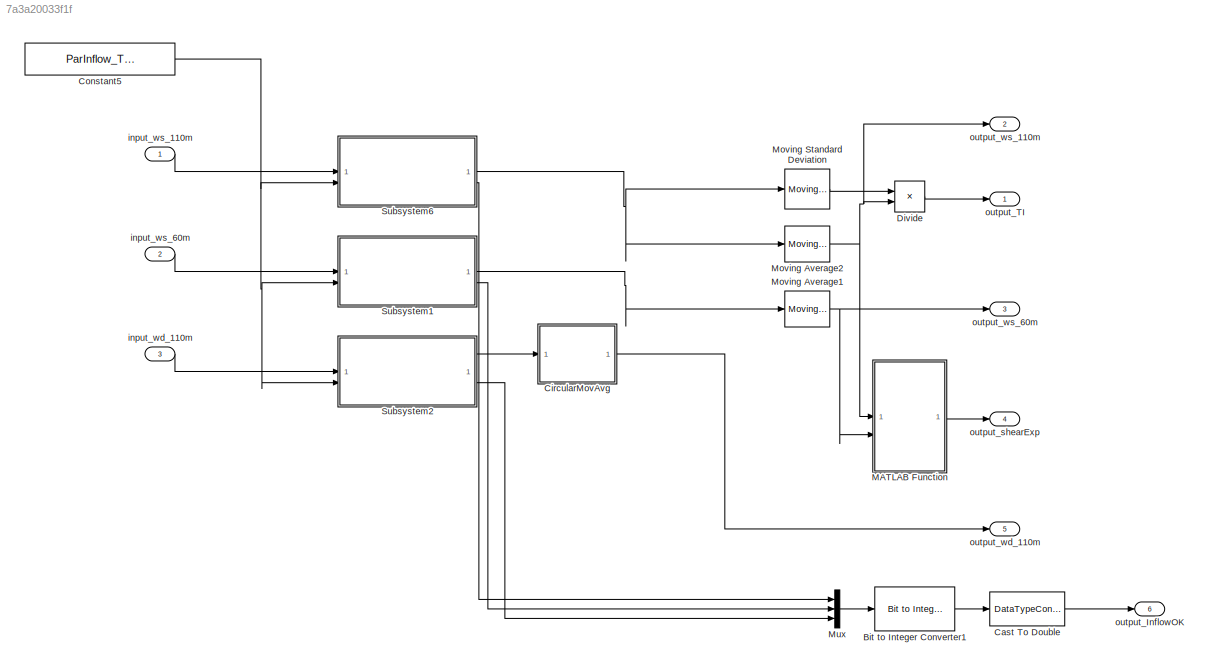
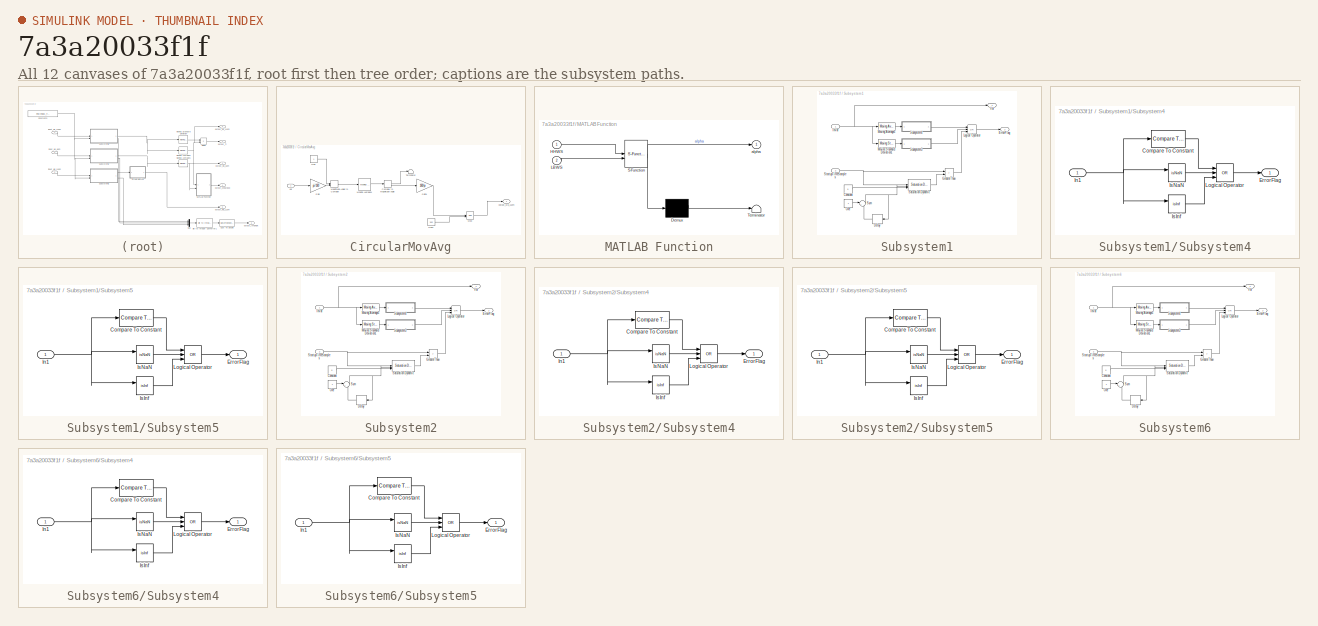
[diagram: thumbnail index - all 12 canvases of the model, root first then tree order]
MODEL slx_7a3a20033f1f
KIND model
CONFIG AbsTol = auto
CONFIG EnableMultiTasking = off
CONFIG FixedStep = sample_time
CONFIG MaxStep = auto
CONFIG MinStep = auto
CONFIG RelTol = 1e-3
CONFIG SampleTimeConstraint = Unconstrained
CONFIG SolverName = FixedStepDiscrete
CONFIG StartTime = 0
CONFIG StopTime = duration
BLOCK [Reference] Bit to Integer Converter1  REF=simulink/Logic and Bit
Operations/Bit to Integer
Converter
  LibrarySourceBlock = commutil2/Bit to Integer\nConverter
  SourceBlock = simulink/Logic and Bit\nOperations/Bit to Integer\nConverter
  SourceType = Bit to Integer Converter
BLOCK [DataTypeConversion] Cast To Double
  OutDataTypeStr = double
  RndMeth = Floor
  SaturateOnIntegerOverflow = off
BLOCK [SubSystem] CircularMovAvg
BLOCK [ComplexToMagnitudeAngle] CircularMovAvg/Complex to Magnitude-Angle
BLOCK [Gain] CircularMovAvg/Gain
  Gain = pi/180
BLOCK [Gain] CircularMovAvg/Gain1
  Gain = 180/pi
BLOCK [MagnitudeAngleToComplex] CircularMovAvg/Magnitude-Angle to Complex
BLOCK [Math] CircularMovAvg/Mod
  Operator = mod
  SignedPower = on
BLOCK [Reference] CircularMovAvg/Moving Average1  REF=dspstat3/Moving
Average
  SourceBlock = dspstat3/Moving\nAverage
  SourceType = dsp.simulink.MovingAverage
BLOCK [Constant] CircularMovAvg/One
  OutDataTypeStr = Inherit: Inherit via back propagation
BLOCK [Constant] CircularMovAvg/One1
  OutDataTypeStr = Inherit: Inherit via back propagation
  Value = 360
BLOCK [Terminator] CircularMovAvg/Terminator
BLOCK [Inport] CircularMovAvg/Var
BLOCK [Outport] CircularMovAvg/output_wd_110m
  VectorParamsAs1DForOutWhenUnconnected = off
BLOCK [Constant] Constant5
  Value = ParInflow_TUM.StartupTime
BLOCK [Product] Divide
  Inputs = */
BLOCK [SubSystem] MATLAB Function
  ErrorFcn = Stateflow.Translate.translate
  PermitHierarchicalResolution = ExplicitOnly
  SFBlockType = MATLAB Function
  TreatAsAtomicUnit = on
BLOCK [Demux] MATLAB Function/ Demux 
  Outputs = 1
BLOCK [S-Function] MATLAB Function/ SFunction 
  EnableBusSupport = on
  FunctionName = sf_sfun
  PortCounts = [2 2]
  SFcnIsStateOwnerBlock = off
  SFunctionDeploymentMode = off
  Tag = Stateflow S-Function 2
BLOCK [Terminator] MATLAB Function/ Terminator 
BLOCK [Inport] MATLAB Function/HHWS
BLOCK [Inport] MATLAB Function/LBWS
  Port = 2
BLOCK [Outport] MATLAB Function/alpha
  VectorParamsAs1DForOutWhenUnconnected = off
BLOCK [Reference] Moving Average1  REF=dspstat3/Moving
Average
  SourceBlock = dspstat3/Moving\nAverage
  SourceType = dsp.simulink.MovingAverage
BLOCK [Reference] Moving Average2  REF=dspstat3/Moving
Average
  SourceBlock = dspstat3/Moving\nAverage
  SourceType = dsp.simulink.MovingAverage
BLOCK [Reference] Moving Standard Deviation  REF=dspstat3/Moving
Standard
Deviation
  SourceBlock = dspstat3/Moving\nStandard\nDeviation
  SourceType = dsp.simulink.MovingStandardDeviation
BLOCK [Mux] Mux
  DisplayOption = bar
  Inputs = 3
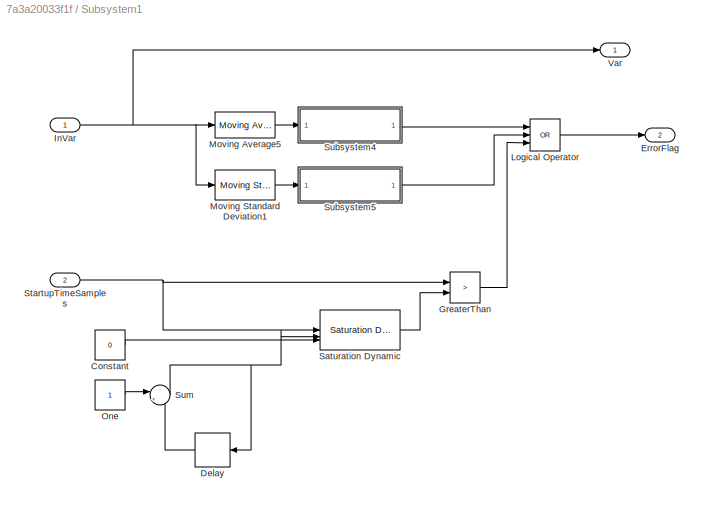
BLOCK [SubSystem] Subsystem1
BLOCK [Constant] Subsystem1/Constant
  Value = 0
BLOCK [Delay] Subsystem1/Delay
  DelayLength = 1
  InitialCondition = 0
  InputPortMap = u0
  NameLocation = top
BLOCK [Outport] Subsystem1/ErrorFlag
  Port = 2
  VectorParamsAs1DForOutWhenUnconnected = off
BLOCK [RelationalOperator] Subsystem1/GreaterThan
  InputSameDT = off
  Operator = >
  OutDataTypeStr = boolean
  RndMeth = Simplest
BLOCK [Inport] Subsystem1/InVar
BLOCK [Logic] Subsystem1/Logical Operator
  AllPortsSameDT = off
  Inputs = 3
  Operator = OR
  OutDataTypeStr = boolean
BLOCK [Reference] Subsystem1/Moving Average5  REF=dspstat3/Moving
Average
  SourceBlock = dspstat3/Moving\nAverage
  SourceType = dsp.simulink.MovingAverage
BLOCK [Reference] Subsystem1/Moving Standard Deviation1  REF=dspstat3/Moving
Standard
Deviation
  SourceBlock = dspstat3/Moving\nStandard\nDeviation
  SourceType = dsp.simulink.MovingStandardDeviation
BLOCK [Constant] Subsystem1/One
  OutDataTypeStr = Inherit: Inherit via back propagation
BLOCK [Reference] Subsystem1/Saturation Dynamic  REF=simulink/Discontinuities/Saturation
Dynamic
  SourceBlock = simulink/Discontinuities/Saturation\nDynamic
  SourceType = Saturation Dynamic
BLOCK [Inport] Subsystem1/StartupTimeSamples
  Port = 2
BLOCK [SubSystem] Subsystem1/Subsystem4
BLOCK [Reference] Subsystem1/Subsystem4/Compare To Constant  REF=simulink/Logic and Bit
Operations/Compare
To Constant
  SourceBlock = simulink/Logic and Bit\nOperations/Compare\nTo Constant
  SourceType = Compare To Constant
BLOCK [Outport] Subsystem1/Subsystem4/ErrorFlag
  VectorParamsAs1DForOutWhenUnconnected = off
BLOCK [Inport] Subsystem1/Subsystem4/In1
BLOCK [RelationalOperator] Subsystem1/Subsystem4/IsInf
  InputSameDT = off
  Operator = isInf
  OutDataTypeStr = boolean
  RndMeth = Simplest
BLOCK [RelationalOperator] Subsystem1/Subsystem4/IsNaN
  InputSameDT = off
  Operator = isNaN
  OutDataTypeStr = boolean
  RndMeth = Simplest
BLOCK [Logic] Subsystem1/Subsystem4/Logical Operator
  AllPortsSameDT = off
  Inputs = 3
  Operator = OR
  OutDataTypeStr = boolean
BLOCK [SubSystem] Subsystem1/Subsystem5
BLOCK [Reference] Subsystem1/Subsystem5/Compare To Constant  REF=simulink/Logic and Bit
Operations/Compare
To Constant
  SourceBlock = simulink/Logic and Bit\nOperations/Compare\nTo Constant
  SourceType = Compare To Constant
BLOCK [Outport] Subsystem1/Subsystem5/ErrorFlag
  VectorParamsAs1DForOutWhenUnconnected = off
BLOCK [Inport] Subsystem1/Subsystem5/In1
BLOCK [RelationalOperator] Subsystem1/Subsystem5/IsInf
  InputSameDT = off
  Operator = isInf
  OutDataTypeStr = boolean
  RndMeth = Simplest
BLOCK [RelationalOperator] Subsystem1/Subsystem5/IsNaN
  InputSameDT = off
  Operator = isNaN
  OutDataTypeStr = boolean
  RndMeth = Simplest
BLOCK [Logic] Subsystem1/Subsystem5/Logical Operator
  AllPortsSameDT = off
  Inputs = 3
  Operator = OR
  OutDataTypeStr = boolean
BLOCK [Sum] Subsystem1/Sum
  Inputs = |++
BLOCK [Outport] Subsystem1/Var
  VectorParamsAs1DForOutWhenUnconnected = off
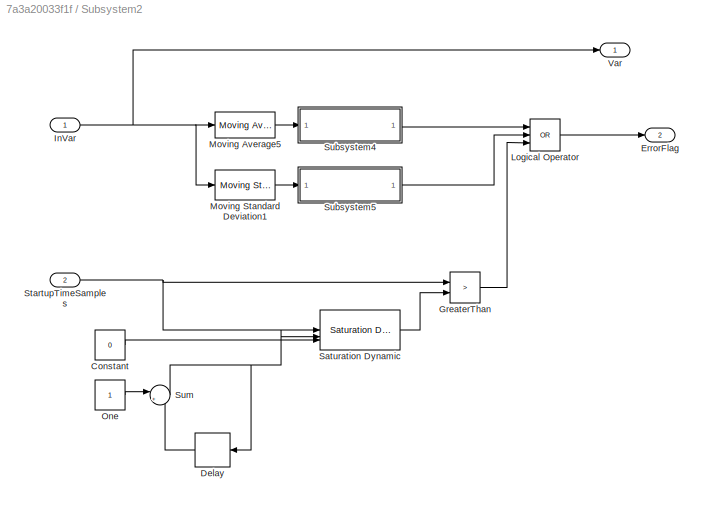
BLOCK [SubSystem] Subsystem2
BLOCK [Constant] Subsystem2/Constant
  Value = 0
BLOCK [Delay] Subsystem2/Delay
  DelayLength = 1
  InitialCondition = 0
  InputPortMap = u0
  NameLocation = top
BLOCK [Outport] Subsystem2/ErrorFlag
  Port = 2
  VectorParamsAs1DForOutWhenUnconnected = off
BLOCK [RelationalOperator] Subsystem2/GreaterThan
  InputSameDT = off
  Operator = >
  OutDataTypeStr = boolean
  RndMeth = Simplest
BLOCK [Inport] Subsystem2/InVar
BLOCK [Logic] Subsystem2/Logical Operator
  AllPortsSameDT = off
  Inputs = 3
  Operator = OR
  OutDataTypeStr = boolean
BLOCK [Reference] Subsystem2/Moving Average5  REF=dspstat3/Moving
Average
  SourceBlock = dspstat3/Moving\nAverage
  SourceType = dsp.simulink.MovingAverage
BLOCK [Reference] Subsystem2/Moving Standard Deviation1  REF=dspstat3/Moving
Standard
Deviation
  SourceBlock = dspstat3/Moving\nStandard\nDeviation
  SourceType = dsp.simulink.MovingStandardDeviation
BLOCK [Constant] Subsystem2/One
  OutDataTypeStr = Inherit: Inherit via back propagation
BLOCK [Reference] Subsystem2/Saturation Dynamic  REF=simulink/Discontinuities/Saturation
Dynamic
  SourceBlock = simulink/Discontinuities/Saturation\nDynamic
  SourceType = Saturation Dynamic
BLOCK [Inport] Subsystem2/StartupTimeSamples
  Port = 2
BLOCK [SubSystem] Subsystem2/Subsystem4
BLOCK [Reference] Subsystem2/Subsystem4/Compare To Constant  REF=simulink/Logic and Bit
Operations/Compare
To Constant
  SourceBlock = simulink/Logic and Bit\nOperations/Compare\nTo Constant
  SourceType = Compare To Constant
BLOCK [Outport] Subsystem2/Subsystem4/ErrorFlag
  VectorParamsAs1DForOutWhenUnconnected = off
BLOCK [Inport] Subsystem2/Subsystem4/In1
BLOCK [RelationalOperator] Subsystem2/Subsystem4/IsInf
  InputSameDT = off
  Operator = isInf
  OutDataTypeStr = boolean
  RndMeth = Simplest
BLOCK [RelationalOperator] Subsystem2/Subsystem4/IsNaN
  InputSameDT = off
  Operator = isNaN
  OutDataTypeStr = boolean
  RndMeth = Simplest
BLOCK [Logic] Subsystem2/Subsystem4/Logical Operator
  AllPortsSameDT = off
  Inputs = 3
  Operator = OR
  OutDataTypeStr = boolean
BLOCK [SubSystem] Subsystem2/Subsystem5
BLOCK [Reference] Subsystem2/Subsystem5/Compare To Constant  REF=simulink/Logic and Bit
Operations/Compare
To Constant
  SourceBlock = simulink/Logic and Bit\nOperations/Compare\nTo Constant
  SourceType = Compare To Constant
BLOCK [Outport] Subsystem2/Subsystem5/ErrorFlag
  VectorParamsAs1DForOutWhenUnconnected = off
BLOCK [Inport] Subsystem2/Subsystem5/In1
BLOCK [RelationalOperator] Subsystem2/Subsystem5/IsInf
  InputSameDT = off
  Operator = isInf
  OutDataTypeStr = boolean
  RndMeth = Simplest
BLOCK [RelationalOperator] Subsystem2/Subsystem5/IsNaN
  InputSameDT = off
  Operator = isNaN
  OutDataTypeStr = boolean
  RndMeth = Simplest
BLOCK [Logic] Subsystem2/Subsystem5/Logical Operator
  AllPortsSameDT = off
  Inputs = 3
  Operator = OR
  OutDataTypeStr = boolean
BLOCK [Sum] Subsystem2/Sum
  Inputs = |++
BLOCK [Outport] Subsystem2/Var
  VectorParamsAs1DForOutWhenUnconnected = off
BLOCK [SubSystem] Subsystem6
BLOCK [Constant] Subsystem6/Constant
  Value = 0
BLOCK [Delay] Subsystem6/Delay
  DelayLength = 1
  InitialCondition = 0
  InputPortMap = u0
  NameLocation = top
BLOCK [Outport] Subsystem6/ErrorFlag
  Port = 2
  VectorParamsAs1DForOutWhenUnconnected = off
BLOCK [RelationalOperator] Subsystem6/GreaterThan
  InputSameDT = off
  Operator = >
  OutDataTypeStr = boolean
  RndMeth = Simplest
BLOCK [Inport] Subsystem6/InVar
BLOCK [Logic] Subsystem6/Logical Operator
  AllPortsSameDT = off
  Inputs = 3
  Operator = OR
  OutDataTypeStr = boolean
BLOCK [Reference] Subsystem6/Moving Average5  REF=dspstat3/Moving
Average
  SourceBlock = dspstat3/Moving\nAverage
  SourceType = dsp.simulink.MovingAverage
BLOCK [Reference] Subsystem6/Moving Standard Deviation1  REF=dspstat3/Moving
Standard
Deviation
  SourceBlock = dspstat3/Moving\nStandard\nDeviation
  SourceType = dsp.simulink.MovingStandardDeviation
BLOCK [Constant] Subsystem6/One
  OutDataTypeStr = Inherit: Inherit via back propagation
BLOCK [Reference] Subsystem6/Saturation Dynamic  REF=simulink/Discontinuities/Saturation
Dynamic
  SourceBlock = simulink/Discontinuities/Saturation\nDynamic
  SourceType = Saturation Dynamic
BLOCK [Inport] Subsystem6/StartupTimeSamples
  Port = 2
BLOCK [SubSystem] Subsystem6/Subsystem4
BLOCK [Reference] Subsystem6/Subsystem4/Compare To Constant  REF=simulink/Logic and Bit
Operations/Compare
To Constant
  SourceBlock = simulink/Logic and Bit\nOperations/Compare\nTo Constant
  SourceType = Compare To Constant
BLOCK [Outport] Subsystem6/Subsystem4/ErrorFlag
  VectorParamsAs1DForOutWhenUnconnected = off
BLOCK [Inport] Subsystem6/Subsystem4/In1
BLOCK [RelationalOperator] Subsystem6/Subsystem4/IsInf
  InputSameDT = off
  Operator = isInf
  OutDataTypeStr = boolean
  RndMeth = Simplest
BLOCK [RelationalOperator] Subsystem6/Subsystem4/IsNaN
  InputSameDT = off
  Operator = isNaN
  OutDataTypeStr = boolean
  RndMeth = Simplest
BLOCK [Logic] Subsystem6/Subsystem4/Logical Operator
  AllPortsSameDT = off
  Inputs = 3
  Operator = OR
  OutDataTypeStr = boolean
BLOCK [SubSystem] Subsystem6/Subsystem5
BLOCK [Reference] Subsystem6/Subsystem5/Compare To Constant  REF=simulink/Logic and Bit
Operations/Compare
To Constant
  SourceBlock = simulink/Logic and Bit\nOperations/Compare\nTo Constant
  SourceType = Compare To Constant
BLOCK [Outport] Subsystem6/Subsystem5/ErrorFlag
  VectorParamsAs1DForOutWhenUnconnected = off
BLOCK [Inport] Subsystem6/Subsystem5/In1
BLOCK [RelationalOperator] Subsystem6/Subsystem5/IsInf
  InputSameDT = off
  Operator = isInf
  OutDataTypeStr = boolean
  RndMeth = Simplest
BLOCK [RelationalOperator] Subsystem6/Subsystem5/IsNaN
  InputSameDT = off
  Operator = isNaN
  OutDataTypeStr = boolean
  RndMeth = Simplest
BLOCK [Logic] Subsystem6/Subsystem5/Logical Operator
  AllPortsSameDT = off
  Inputs = 3
  Operator = OR
  OutDataTypeStr = boolean
BLOCK [Sum] Subsystem6/Sum
  Inputs = |++
BLOCK [Outport] Subsystem6/Var
  VectorParamsAs1DForOutWhenUnconnected = off
BLOCK [Inport] input_wd_110m
  Port = 3
  PortDimensions = 1
BLOCK [Inport] input_ws_110m
  PortDimensions = 1
BLOCK [Inport] input_ws_60m
  Port = 2
  PortDimensions = 1
BLOCK [Outport] output_InflowOK
  Port = 6
  VectorParamsAs1DForOutWhenUnconnected = off
BLOCK [Outport] output_TI
  VectorParamsAs1DForOutWhenUnconnected = off
BLOCK [Outport] output_shearExp
  Port = 4
  VectorParamsAs1DForOutWhenUnconnected = off
BLOCK [Outport] output_wd_110m
  Port = 5
  VectorParamsAs1DForOutWhenUnconnected = off
BLOCK [Outport] output_ws_110m
  Port = 2
  VectorParamsAs1DForOutWhenUnconnected = off
BLOCK [Outport] output_ws_60m
  Port = 3
  VectorParamsAs1DForOutWhenUnconnected = off
LINE Bit to Integer Converter1:1 -> Cast To Double:1
LINE Cast To Double:1 -> output_InflowOK:1
LINE CircularMovAvg/Complex to Magnitude-Angle:1 -> CircularMovAvg/Terminator:1
LINE CircularMovAvg/Complex to Magnitude-Angle:2 -> CircularMovAvg/Gain1:1
LINE CircularMovAvg/Gain1:1 -> CircularMovAvg/Mod:1
LINE CircularMovAvg/Gain:1 -> CircularMovAvg/Magnitude-Angle to Complex:2
LINE CircularMovAvg/Magnitude-Angle to Complex:1 -> CircularMovAvg/Moving Average1:1
LINE CircularMovAvg/Mod:1 -> CircularMovAvg/output_wd_110m:1
LINE CircularMovAvg/Moving Average1:1 -> CircularMovAvg/Complex to Magnitude-Angle:1
LINE CircularMovAvg/One1:1 -> CircularMovAvg/Mod:2
LINE CircularMovAvg/One:1 -> CircularMovAvg/Magnitude-Angle to Complex:1
LINE CircularMovAvg/Var:1 -> CircularMovAvg/Gain:1
LINE CircularMovAvg:1 -> output_wd_110m:1
NET Constant5:1 -> Subsystem1:2, Subsystem2:2, Subsystem6:2
LINE Divide:1 -> output_TI:1
LINE MATLAB Function:1 -> output_shearExp:1
NET Moving Average1:1 -> MATLAB Function:2, output_ws_60m:1
NET Moving Average2:1 -> Divide:2, MATLAB Function:1, output_ws_110m:1
LINE Moving Standard Deviation:1 -> Divide:1
LINE Mux:1 -> Bit to Integer Converter1:1
LINE Subsystem1/Constant:1 -> Subsystem1/Saturation Dynamic:3
LINE Subsystem1/Delay:1 -> Subsystem1/Sum:2
LINE Subsystem1/GreaterThan:1 -> Subsystem1/Logical Operator:3
NET Subsystem1/InVar:1 -> Subsystem1/Moving Average5:1, Subsystem1/Moving Standard Deviation1:1, Subsystem1/Var:1
LINE Subsystem1/Logical Operator:1 -> Subsystem1/ErrorFlag:1
LINE Subsystem1/Moving Average5:1 -> Subsystem1/Subsystem4:1
LINE Subsystem1/Moving Standard Deviation1:1 -> Subsystem1/Subsystem5:1
LINE Subsystem1/One:1 -> Subsystem1/Sum:1
LINE Subsystem1/Saturation Dynamic:1 -> Subsystem1/GreaterThan:2
NET Subsystem1/StartupTimeSamples:1 -> Subsystem1/GreaterThan:1, Subsystem1/Saturation Dynamic:1
LINE Subsystem1/Subsystem4/Compare To Constant:1 -> Subsystem1/Subsystem4/Logical Operator:1
NET Subsystem1/Subsystem4/In1:1 -> Subsystem1/Subsystem4/Compare To Constant:1, Subsystem1/Subsystem4/IsInf:1, Subsystem1/Subsystem4/IsNaN:1
LINE Subsystem1/Subsystem4/IsInf:1 -> Subsystem1/Subsystem4/Logical Operator:3
LINE Subsystem1/Subsystem4/IsNaN:1 -> Subsystem1/Subsystem4/Logical Operator:2
LINE Subsystem1/Subsystem4/Logical Operator:1 -> Subsystem1/Subsystem4/ErrorFlag:1
LINE Subsystem1/Subsystem4:1 -> Subsystem1/Logical Operator:1
LINE Subsystem1/Subsystem5/Compare To Constant:1 -> Subsystem1/Subsystem5/Logical Operator:1
NET Subsystem1/Subsystem5/In1:1 -> Subsystem1/Subsystem5/Compare To Constant:1, Subsystem1/Subsystem5/IsInf:1, Subsystem1/Subsystem5/IsNaN:1
LINE Subsystem1/Subsystem5/IsInf:1 -> Subsystem1/Subsystem5/Logical Operator:3
LINE Subsystem1/Subsystem5/IsNaN:1 -> Subsystem1/Subsystem5/Logical Operator:2
LINE Subsystem1/Subsystem5/Logical Operator:1 -> Subsystem1/Subsystem5/ErrorFlag:1
LINE Subsystem1/Subsystem5:1 -> Subsystem1/Logical Operator:2
NET Subsystem1/Sum:1 -> Subsystem1/Delay:1, Subsystem1/Saturation Dynamic:2
LINE Subsystem1:1 -> Moving Average1:1
LINE Subsystem1:2 -> Mux:2
LINE Subsystem2/Constant:1 -> Subsystem2/Saturation Dynamic:3
LINE Subsystem2/Delay:1 -> Subsystem2/Sum:2
LINE Subsystem2/GreaterThan:1 -> Subsystem2/Logical Operator:3
NET Subsystem2/InVar:1 -> Subsystem2/Moving Average5:1, Subsystem2/Moving Standard Deviation1:1, Subsystem2/Var:1
LINE Subsystem2/Logical Operator:1 -> Subsystem2/ErrorFlag:1
LINE Subsystem2/Moving Average5:1 -> Subsystem2/Subsystem4:1
LINE Subsystem2/Moving Standard Deviation1:1 -> Subsystem2/Subsystem5:1
LINE Subsystem2/One:1 -> Subsystem2/Sum:1
LINE Subsystem2/Saturation Dynamic:1 -> Subsystem2/GreaterThan:2
NET Subsystem2/StartupTimeSamples:1 -> Subsystem2/GreaterThan:1, Subsystem2/Saturation Dynamic:1
LINE Subsystem2/Subsystem4/Compare To Constant:1 -> Subsystem2/Subsystem4/Logical Operator:1
NET Subsystem2/Subsystem4/In1:1 -> Subsystem2/Subsystem4/Compare To Constant:1, Subsystem2/Subsystem4/IsInf:1, Subsystem2/Subsystem4/IsNaN:1
LINE Subsystem2/Subsystem4/IsInf:1 -> Subsystem2/Subsystem4/Logical Operator:3
LINE Subsystem2/Subsystem4/IsNaN:1 -> Subsystem2/Subsystem4/Logical Operator:2
LINE Subsystem2/Subsystem4/Logical Operator:1 -> Subsystem2/Subsystem4/ErrorFlag:1
LINE Subsystem2/Subsystem4:1 -> Subsystem2/Logical Operator:1
LINE Subsystem2/Subsystem5/Compare To Constant:1 -> Subsystem2/Subsystem5/Logical Operator:1
NET Subsystem2/Subsystem5/In1:1 -> Subsystem2/Subsystem5/Compare To Constant:1, Subsystem2/Subsystem5/IsInf:1, Subsystem2/Subsystem5/IsNaN:1
LINE Subsystem2/Subsystem5/IsInf:1 -> Subsystem2/Subsystem5/Logical Operator:3
LINE Subsystem2/Subsystem5/IsNaN:1 -> Subsystem2/Subsystem5/Logical Operator:2
LINE Subsystem2/Subsystem5/Logical Operator:1 -> Subsystem2/Subsystem5/ErrorFlag:1
LINE Subsystem2/Subsystem5:1 -> Subsystem2/Logical Operator:2
NET Subsystem2/Sum:1 -> Subsystem2/Delay:1, Subsystem2/Saturation Dynamic:2
LINE Subsystem2:1 -> CircularMovAvg:1
LINE Subsystem2:2 -> Mux:3
LINE Subsystem6/Constant:1 -> Subsystem6/Saturation Dynamic:3
LINE Subsystem6/Delay:1 -> Subsystem6/Sum:2
LINE Subsystem6/GreaterThan:1 -> Subsystem6/Logical Operator:3
NET Subsystem6/InVar:1 -> Subsystem6/Moving Average5:1, Subsystem6/Moving Standard Deviation1:1, Subsystem6/Var:1
LINE Subsystem6/Logical Operator:1 -> Subsystem6/ErrorFlag:1
LINE Subsystem6/Moving Average5:1 -> Subsystem6/Subsystem4:1
LINE Subsystem6/Moving Standard Deviation1:1 -> Subsystem6/Subsystem5:1
LINE Subsystem6/One:1 -> Subsystem6/Sum:1
LINE Subsystem6/Saturation Dynamic:1 -> Subsystem6/GreaterThan:2
NET Subsystem6/StartupTimeSamples:1 -> Subsystem6/GreaterThan:1, Subsystem6/Saturation Dynamic:1
LINE Subsystem6/Subsystem4/Compare To Constant:1 -> Subsystem6/Subsystem4/Logical Operator:1
NET Subsystem6/Subsystem4/In1:1 -> Subsystem6/Subsystem4/Compare To Constant:1, Subsystem6/Subsystem4/IsInf:1, Subsystem6/Subsystem4/IsNaN:1
LINE Subsystem6/Subsystem4/IsInf:1 -> Subsystem6/Subsystem4/Logical Operator:3
LINE Subsystem6/Subsystem4/IsNaN:1 -> Subsystem6/Subsystem4/Logical Operator:2
LINE Subsystem6/Subsystem4/Logical Operator:1 -> Subsystem6/Subsystem4/ErrorFlag:1
LINE Subsystem6/Subsystem4:1 -> Subsystem6/Logical Operator:1
LINE Subsystem6/Subsystem5/Compare To Constant:1 -> Subsystem6/Subsystem5/Logical Operator:1
NET Subsystem6/Subsystem5/In1:1 -> Subsystem6/Subsystem5/Compare To Constant:1, Subsystem6/Subsystem5/IsInf:1, Subsystem6/Subsystem5/IsNaN:1
LINE Subsystem6/Subsystem5/IsInf:1 -> Subsystem6/Subsystem5/Logical Operator:3
LINE Subsystem6/Subsystem5/IsNaN:1 -> Subsystem6/Subsystem5/Logical Operator:2
LINE Subsystem6/Subsystem5/Logical Operator:1 -> Subsystem6/Subsystem5/ErrorFlag:1
LINE Subsystem6/Subsystem5:1 -> Subsystem6/Logical Operator:2
NET Subsystem6/Sum:1 -> Subsystem6/Delay:1, Subsystem6/Saturation Dynamic:2
NET Subsystem6:1 -> Moving Average2:1, Moving Standard Deviation:1
LINE Subsystem6:2 -> Mux:1
LINE input_wd_110m:1 -> Subsystem2:1
LINE input_ws_110m:1 -> Subsystem6:1
LINE input_ws_60m:1 -> Subsystem1:1
note: NET lines group one-source signal fan-out (src -> all destinations, sorted); 1:1 wires keep LINE
CHART MATLAB Function states=1 transitions=1
  STATE_LABEL 'eML_blk_kernel()'
  STATE_LABEL 'SCRIPT:\nfunction alpha = fcn(HHWS, LBWS)\n\nalpha = (log(HHWS) - log(LBWS))./(log(110) - log(60)); %% CRS: this needs to be modified with the real heights\n\n\n'
CHART  states=0 transitions=0
